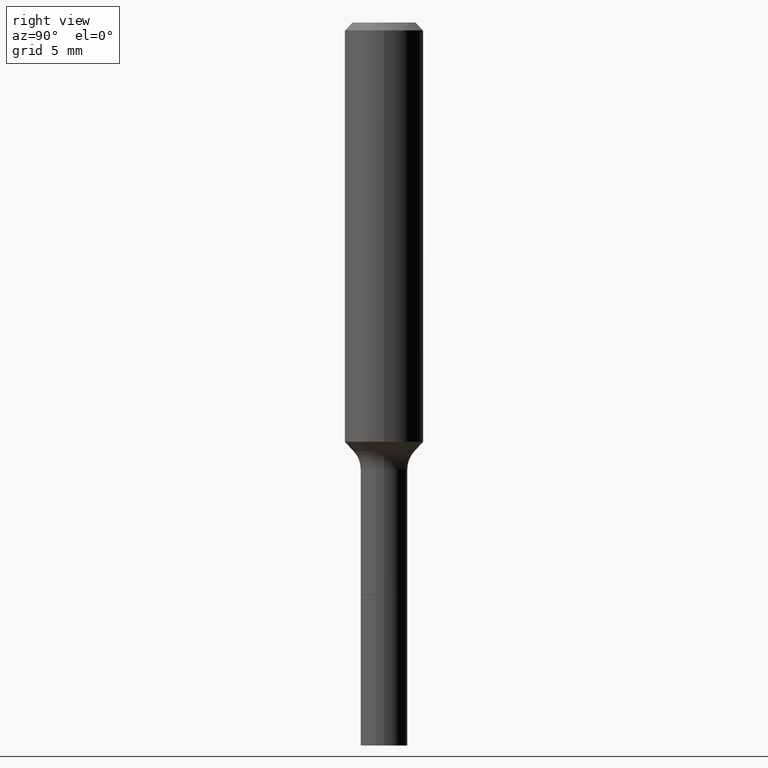
[diagram: clean part render]
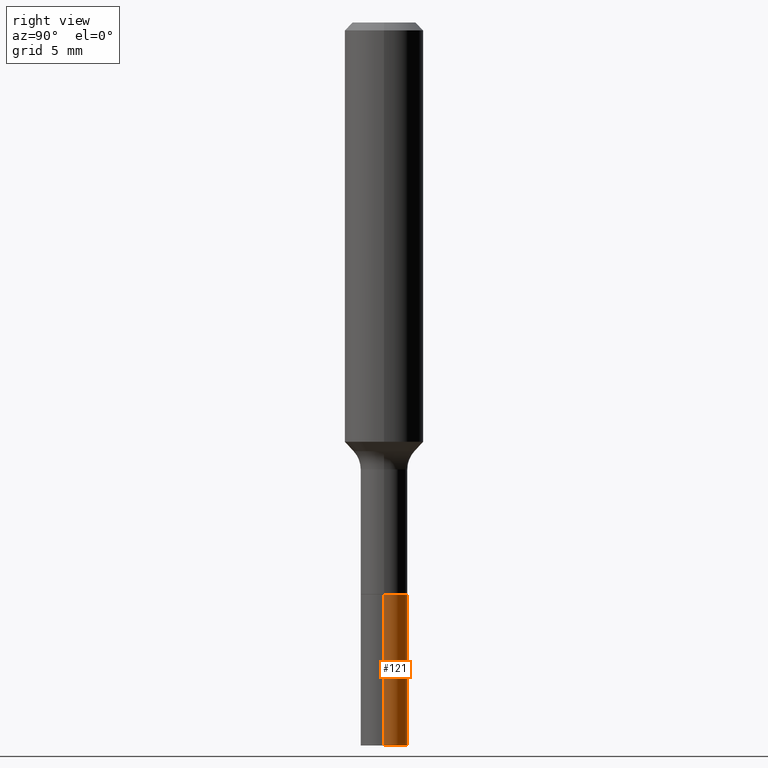
[diagram: same view with one face highlighted and labeled with its STEP entity id]
A machine part, right view. The second image highlights one B-rep face of the part: STEP entity #121.
In plain terms, the highlighted cylindrical surface (edge-blend (fillet) strip) has radius 1.7856 mm, axis along (-0, 0, 1).
Its self-contained STEP definition (entity closure, byte-faithful):
#4 = VERTEX_POINT ( 'NONE', #142 ) ;
#9 = DIRECTION ( 'NONE',  ( -2.445468806185136877E-29, 3.491481338843145188E-15, 1.000000000000000000 ) ) ;
#17 = AXIS2_PLACEMENT_3D ( 'NONE', #266, #349, #510 ) ;
#25 = EDGE_LOOP ( 'NONE', ( #249, #123, #380, #217 ) ) ;
#40 = CARTESIAN_POINT ( 'NONE',  ( 0.07030000000000014015, -8.051355967372291581E-15, -2.165399999999999991 ) ) ;
#51 = DIRECTION ( 'NONE',  ( -2.445468806185136597E-29, 3.491481338843145583E-15, 1.000000000000000000 ) ) ;
#90 = LINE ( 'NONE', #286, #159 ) ;
#121 = ADVANCED_FACE ( 'NONE', ( #271 ), #151, .T. ) ;
#123 = ORIENTED_EDGE ( 'NONE', *, *, #341, .T. ) ;
#142 = CARTESIAN_POINT ( 'NONE',  ( -0.07030000000000000138, -6.270121624643622536E-15, -1.712399999999999700 ) ) ;
#151 = CYLINDRICAL_SURFACE ( 'NONE', #17, 0.07030000000000007077 ) ;
#159 = VECTOR ( 'NONE', #204, 39.37007874015748143 ) ;
#170 = VERTEX_POINT ( 'NONE', #233 ) ;
#197 = EDGE_CURVE ( 'NONE', #222, #170, #208, .T. ) ;
#204 = DIRECTION ( 'NONE',  ( -2.445468806185136877E-29, 3.491481338843145188E-15, 1.000000000000000000 ) ) ;
#208 = CIRCLE ( 'NONE', #338, 0.07030000000000014015 ) ;
#217 = ORIENTED_EDGE ( 'NONE', *, *, #289, .F. ) ;
#222 = VERTEX_POINT ( 'NONE', #40 ) ;
#227 = AXIS2_PLACEMENT_3D ( 'NONE', #412, #51, #240 ) ;
#233 = CARTESIAN_POINT ( 'NONE',  ( -0.07030000000000012628, -6.270121624643621747E-15, -2.165399999999999991 ) ) ;
#239 = DIRECTION ( 'NONE',  ( -2.445468806185136597E-29, 3.491481338843145583E-15, 1.000000000000000000 ) ) ;
#240 = DIRECTION ( 'NONE',  ( 1.000000000000000000, -6.982962677686265133E-15, 0.000000000000000000 ) ) ;
#249 = ORIENTED_EDGE ( 'NONE', *, *, #197, .T. ) ;
#250 = LINE ( 'NONE', #278, #401 ) ;
#266 = CARTESIAN_POINT ( 'NONE',  ( 4.187620783711426965E-29, -5.978812644635001292E-15, -1.712399999999999700 ) ) ;
#271 = FACE_OUTER_BOUND ( 'NONE', #25, .T. ) ;
#278 = CARTESIAN_POINT ( 'NONE',  ( -0.07030000000000007077, -5.479301101395650654E-15, -1.712399999999999700 ) ) ;
#286 = CARTESIAN_POINT ( 'NONE',  ( 0.07030000000000007077, -6.469714920876347028E-15, -1.712399999999999700 ) ) ;
#289 = EDGE_CURVE ( 'NONE', #222, #504, #90, .T. ) ;
#302 = DIRECTION ( 'NONE',  ( 1.000000000000000000, -6.982962677686265133E-15, 0.000000000000000000 ) ) ;
#336 = CARTESIAN_POINT ( 'NONE',  ( 0.07030000000000000138, -6.469714920876346239E-15, -1.712399999999999700 ) ) ;
#338 = AXIS2_PLACEMENT_3D ( 'NONE', #516, #239, #302 ) ;
#341 = EDGE_CURVE ( 'NONE', #170, #4, #250, .T. ) ;
#349 = DIRECTION ( 'NONE',  ( -2.445468806185136597E-29, 3.491481338843145583E-15, 1.000000000000000000 ) ) ;
#350 = EDGE_CURVE ( 'NONE', #504, #4, #420, .T. ) ;
#380 = ORIENTED_EDGE ( 'NONE', *, *, #350, .F. ) ;
#401 = VECTOR ( 'NONE', #9, 39.37007874015748143 ) ;
#412 = CARTESIAN_POINT ( 'NONE',  ( 4.187620783711426965E-29, -5.978812644635001292E-15, -1.712399999999999700 ) ) ;
#420 = CIRCLE ( 'NONE', #227, 0.07030000000000000138 ) ;
#504 = VERTEX_POINT ( 'NONE', #336 ) ;
#510 = DIRECTION ( 'NONE',  ( 1.000000000000000000, -6.982962677686272233E-15, 0.000000000000000000 ) ) ;
#516 = CARTESIAN_POINT ( 'NONE',  ( 5.295418152913294345E-29, -7.560453691130947423E-15, -2.165399999999999991 ) ) ;